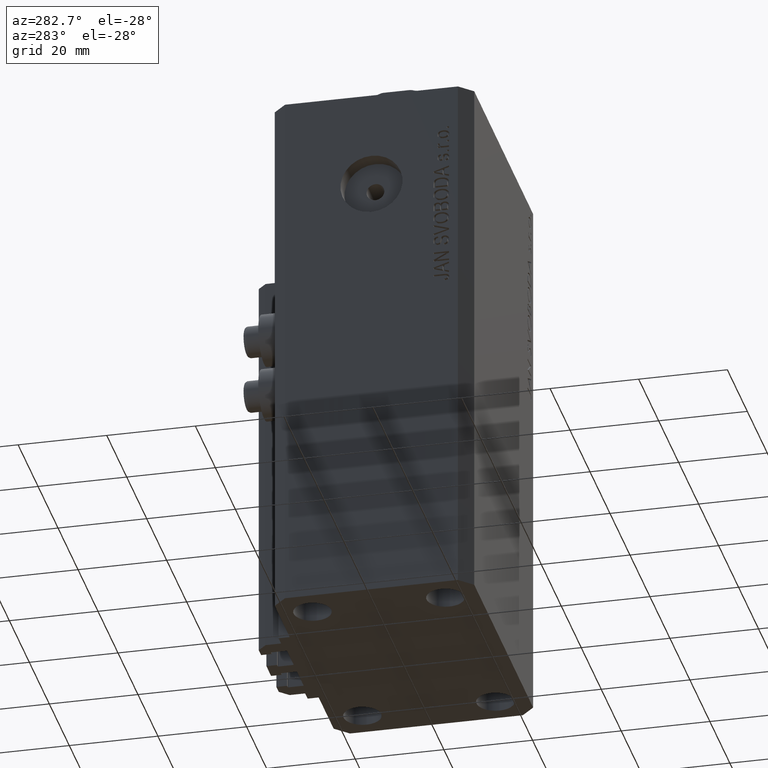
[diagram: clean part render]
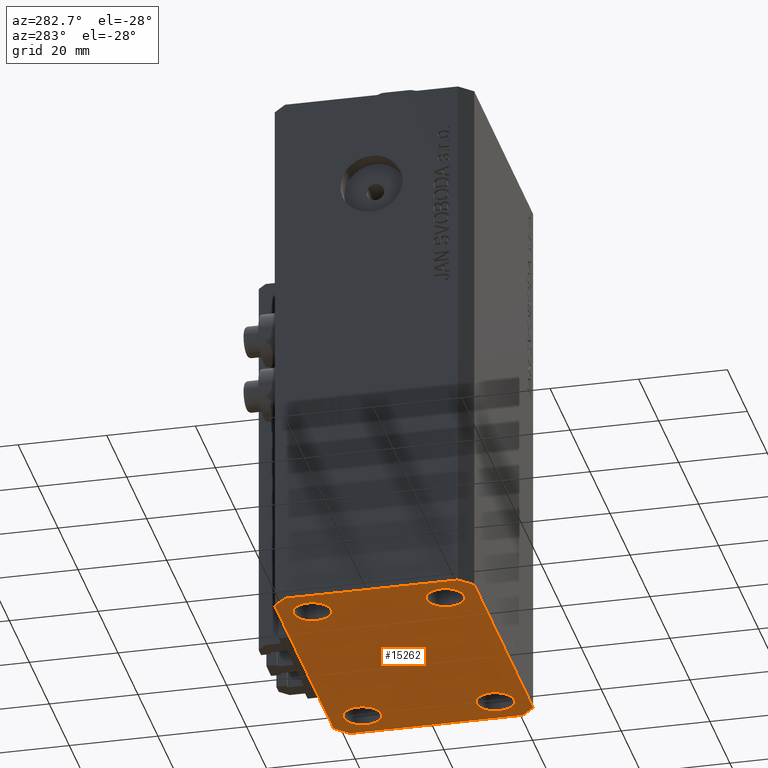
[diagram: same view with one face highlighted and labeled with its STEP entity id]
A machine part, auxiliary view. The second image highlights one B-rep face of the part: STEP entity #15262.
In plain terms, the highlighted planar face has unit normal (0, 0, 1).
Its self-contained STEP definition (entity closure, byte-faithful):
#276 = EDGE_CURVE ( 'NONE', #10479, #25262, #39083, .T. ) ;
#1261 = ORIENTED_EDGE ( 'NONE', *, *, #15469, .F. ) ;
#1328 = EDGE_CURVE ( 'NONE', #1799, #5796, #22737, .T. ) ;
#1390 = DIRECTION ( 'NONE',  ( 1.000000000000000000, 0.000000000000000000, 0.000000000000000000 ) ) ;
#1728 = CARTESIAN_POINT ( 'NONE',  ( -20.74999999995962341, -15.00000000000000355, -123.0000000000000000 ) ) ;
#1799 = VERTEX_POINT ( 'NONE', #30965 ) ;
#2054 = DIRECTION ( 'NONE',  ( -0.000000000000000000, -0.000000000000000000, -1.000000000000000000 ) ) ;
#2555 = VECTOR ( 'NONE', #13865, 1000.000000000000000 ) ;
#2754 = CARTESIAN_POINT ( 'NONE',  ( 24.99999999999999289, -15.00000000000000355, -123.0000000000000000 ) ) ;
#3280 = CIRCLE ( 'NONE', #36061, 4.250000000021375790 ) ;
#3481 = VERTEX_POINT ( 'NONE', #45412 ) ;
#4311 = VERTEX_POINT ( 'NONE', #11854 ) ;
#4625 = CIRCLE ( 'NONE', #22896, 4.249999999957291053 ) ;
#4817 = VERTEX_POINT ( 'NONE', #33076 ) ;
#5212 = CIRCLE ( 'NONE', #17402, 4.249999999957291053 ) ;
#5796 = VERTEX_POINT ( 'NONE', #30393 ) ;
#5856 = DIRECTION ( 'NONE',  ( -0.000000000000000000, -0.000000000000000000, -1.000000000000000000 ) ) ;
#5964 = VERTEX_POINT ( 'NONE', #22233 ) ;
#6380 = EDGE_CURVE ( 'NONE', #3481, #28477, #4625, .T. ) ;
#6664 = VERTEX_POINT ( 'NONE', #15767 ) ;
#6803 = DIRECTION ( 'NONE',  ( 1.000000000000000000, 0.000000000000000000, 0.000000000000000000 ) ) ;
#6902 = LINE ( 'NONE', #27092, #30966 ) ;
#6963 = ORIENTED_EDGE ( 'NONE', *, *, #36689, .F. ) ;
#7611 = CARTESIAN_POINT ( 'NONE',  ( -29.25000000002137668, 14.99999999999999645, -123.0000000000000000 ) ) ;
#7753 = AXIS2_PLACEMENT_3D ( 'NONE', #23310, #2054, #16636 ) ;
#7810 = ORIENTED_EDGE ( 'NONE', *, *, #19105, .F. ) ;
#8455 = ORIENTED_EDGE ( 'NONE', *, *, #42686, .F. ) ;
#8542 = VECTOR ( 'NONE', #39419, 1000.000000000000000 ) ;
#8782 = LINE ( 'NONE', #30721, #12590 ) ;
#8823 = DIRECTION ( 'NONE',  ( -0.000000000000000000, -0.000000000000000000, -1.000000000000000000 ) ) ;
#8963 = PLANE ( 'NONE',  #40067 ) ;
#9112 = VERTEX_POINT ( 'NONE', #43332 ) ;
#9285 = EDGE_CURVE ( 'NONE', #6664, #17420, #19427, .T. ) ;
#9885 = ORIENTED_EDGE ( 'NONE', *, *, #23353, .F. ) ;
#10153 = EDGE_CURVE ( 'NONE', #33307, #9112, #18411, .T. ) ;
#10385 = EDGE_LOOP ( 'NONE', ( #31900, #36027, #35797, #37000, #18580, #31201, #8455, #34055 ) ) ;
#10447 = CARTESIAN_POINT ( 'NONE',  ( -32.49999999999650413, -19.49999999999949907, -123.0000000000000000 ) ) ;
#10479 = VERTEX_POINT ( 'NONE', #22399 ) ;
#11313 = VECTOR ( 'NONE', #20714, 1000.000000000000114 ) ;
#11854 = CARTESIAN_POINT ( 'NONE',  ( 29.49999999999650413, -22.49999999999949196, -123.0000000000000000 ) ) ;
#12590 = VECTOR ( 'NONE', #12598, 1000.000000000000000 ) ;
#12598 = DIRECTION ( 'NONE',  ( 1.000000000000000000, 1.176083712526788232E-16, 0.000000000000000000 ) ) ;
#12651 = CIRCLE ( 'NONE', #30144, 4.250000000040370374 ) ;
#13018 = DIRECTION ( 'NONE',  ( 0.000000000000000000, 0.000000000000000000, 1.000000000000000000 ) ) ;
#13865 = DIRECTION ( 'NONE',  ( 0.000000000000000000, -1.000000000000000000, 0.000000000000000000 ) ) ;
#14035 = CARTESIAN_POINT ( 'NONE',  ( 29.49999999999707967, 22.49999999999952038, -123.0000000000000000 ) ) ;
#15262 = ADVANCED_FACE ( 'NONE', ( #33770, #20154, #30185, #41650, #31138 ), #8963, .F. ) ;
#15469 = EDGE_CURVE ( 'NONE', #43129, #24352, #12651, .T. ) ;
#15767 = CARTESIAN_POINT ( 'NONE',  ( -29.49999999999650413, 22.49999999999949907, -123.0000000000000000 ) ) ;
#15789 = AXIS2_PLACEMENT_3D ( 'NONE', #34105, #8823, #1390 ) ;
#16131 = DIRECTION ( 'NONE',  ( 0.7071067811865483499, 0.7071067811865466846, 0.000000000000000000 ) ) ;
#16230 = EDGE_CURVE ( 'NONE', #4311, #33307, #6902, .T. ) ;
#16636 = DIRECTION ( 'NONE',  ( 1.000000000000000000, 0.000000000000000000, 0.000000000000000000 ) ) ;
#16830 = DIRECTION ( 'NONE',  ( 1.000000000000000000, 0.000000000000000000, 0.000000000000000000 ) ) ;
#17342 = EDGE_CURVE ( 'NONE', #4817, #6664, #28803, .T. ) ;
#17402 = AXIS2_PLACEMENT_3D ( 'NONE', #37584, #5856, #16830 ) ;
#17420 = VERTEX_POINT ( 'NONE', #25460 ) ;
#17442 = AXIS2_PLACEMENT_3D ( 'NONE', #2754, #20899, #27831 ) ;
#18017 = VECTOR ( 'NONE', #21168, 1000.000000000000000 ) ;
#18115 = ORIENTED_EDGE ( 'NONE', *, *, #40646, .F. ) ;
#18411 = LINE ( 'NONE', #29162, #8542 ) ;
#18580 = ORIENTED_EDGE ( 'NONE', *, *, #47040, .F. ) ;
#18682 = CARTESIAN_POINT ( 'NONE',  ( -24.99999999999999289, -15.00000000000000355, -123.0000000000000000 ) ) ;
#18866 = DIRECTION ( 'NONE',  ( -0.000000000000000000, -0.000000000000000000, -1.000000000000000000 ) ) ;
#19105 = EDGE_CURVE ( 'NONE', #40070, #5964, #40945, .T. ) ;
#19427 = LINE ( 'NONE', #23489, #45840 ) ;
#20154 = FACE_BOUND ( 'NONE', #42410, .T. ) ;
#20714 = DIRECTION ( 'NONE',  ( 0.7071067811865474617, -0.7071067811865474617, 0.000000000000000000 ) ) ;
#20899 = DIRECTION ( 'NONE',  ( -0.000000000000000000, -0.000000000000000000, -1.000000000000000000 ) ) ;
#21168 = DIRECTION ( 'NONE',  ( -1.000000000000000000, -3.528251137580330676E-16, 0.000000000000000000 ) ) ;
#21233 = CARTESIAN_POINT ( 'NONE',  ( -32.49999999999650413, 19.49999999999949907, -123.0000000000000000 ) ) ;
#21781 = EDGE_CURVE ( 'NONE', #28477, #3481, #5212, .T. ) ;
#21897 = AXIS2_PLACEMENT_3D ( 'NONE', #25818, #22234, #43719 ) ;
#22233 = CARTESIAN_POINT ( 'NONE',  ( -20.74999999997862687, 14.99999999999999645, -123.0000000000000000 ) ) ;
#22234 = DIRECTION ( 'NONE',  ( -0.000000000000000000, -0.000000000000000000, -1.000000000000000000 ) ) ;
#22399 = CARTESIAN_POINT ( 'NONE',  ( -32.49999999999650413, -19.49999999999949907, -123.0000000000000000 ) ) ;
#22737 = CIRCLE ( 'NONE', #17442, 4.249999999976314058 ) ;
#22896 = AXIS2_PLACEMENT_3D ( 'NONE', #39492, #42144, #6803 ) ;
#23150 = DIRECTION ( 'NONE',  ( 1.000000000000000000, 0.000000000000000000, 0.000000000000000000 ) ) ;
#23244 = DIRECTION ( 'NONE',  ( -0.7071067811865474617, -0.7071067811865474617, 0.000000000000000000 ) ) ;
#23310 = CARTESIAN_POINT ( 'NONE',  ( -24.99999999999999289, -15.00000000000000355, -123.0000000000000000 ) ) ;
#23353 = EDGE_CURVE ( 'NONE', #5796, #1799, #36378, .T. ) ;
#23489 = CARTESIAN_POINT ( 'NONE',  ( -29.49999999999650413, 22.49999999999949907, -123.0000000000000000 ) ) ;
#24352 = VERTEX_POINT ( 'NONE', #1728 ) ;
#24407 = CARTESIAN_POINT ( 'NONE',  ( -29.49999999999650413, -22.49999999999949907, -123.0000000000000000 ) ) ;
#25262 = VERTEX_POINT ( 'NONE', #24407 ) ;
#25460 = CARTESIAN_POINT ( 'NONE',  ( -32.49999999999650413, 19.49999999999949907, -123.0000000000000000 ) ) ;
#25818 = CARTESIAN_POINT ( 'NONE',  ( 24.99999999999999289, -15.00000000000000355, -123.0000000000000000 ) ) ;
#27092 = CARTESIAN_POINT ( 'NONE',  ( 29.49999999999650413, -22.49999999999949196, -123.0000000000000000 ) ) ;
#27831 = DIRECTION ( 'NONE',  ( 1.000000000000000000, 0.000000000000000000, 0.000000000000000000 ) ) ;
#28147 = ORIENTED_EDGE ( 'NONE', *, *, #21781, .F. ) ;
#28177 = VECTOR ( 'NONE', #34366, 1000.000000000000000 ) ;
#28477 = VERTEX_POINT ( 'NONE', #39654 ) ;
#28803 = LINE ( 'NONE', #14035, #18017 ) ;
#29162 = CARTESIAN_POINT ( 'NONE',  ( 32.49999999999651124, -19.49999999999949196, -123.0000000000000000 ) ) ;
#29201 = DIRECTION ( 'NONE',  ( -0.000000000000000000, -0.000000000000000000, -1.000000000000000000 ) ) ;
#30144 = AXIS2_PLACEMENT_3D ( 'NONE', #18682, #29201, #43753 ) ;
#30185 = FACE_BOUND ( 'NONE', #38132, .T. ) ;
#30393 = CARTESIAN_POINT ( 'NONE',  ( 20.75000000002367884, -15.00000000000000355, -123.0000000000000000 ) ) ;
#30721 = CARTESIAN_POINT ( 'NONE',  ( -29.49999999999650413, -22.49999999999949907, -123.0000000000000000 ) ) ;
#30942 = EDGE_CURVE ( 'NONE', #9112, #4817, #31505, .T. ) ;
#30965 = CARTESIAN_POINT ( 'NONE',  ( 29.24999999997631051, -15.00000000000000355, -123.0000000000000000 ) ) ;
#30966 = VECTOR ( 'NONE', #16131, 1000.000000000000000 ) ;
#31138 = FACE_OUTER_BOUND ( 'NONE', #10385, .T. ) ;
#31201 = ORIENTED_EDGE ( 'NONE', *, *, #276, .F. ) ;
#31505 = LINE ( 'NONE', #42005, #28177 ) ;
#31900 = ORIENTED_EDGE ( 'NONE', *, *, #17342, .F. ) ;
#33076 = CARTESIAN_POINT ( 'NONE',  ( 29.49999999999707967, 22.49999999999952038, -123.0000000000000000 ) ) ;
#33307 = VERTEX_POINT ( 'NONE', #43725 ) ;
#33612 = EDGE_LOOP ( 'NONE', ( #6963, #1261 ) ) ;
#33770 = FACE_BOUND ( 'NONE', #33612, .T. ) ;
#34055 = ORIENTED_EDGE ( 'NONE', *, *, #9285, .F. ) ;
#34105 = CARTESIAN_POINT ( 'NONE',  ( -25.00000000000000000, 14.99999999999999645, -123.0000000000000000 ) ) ;
#34366 = DIRECTION ( 'NONE',  ( -0.7071067811865344721, 0.7071067811865606734, 0.000000000000000000 ) ) ;
#34715 = DIRECTION ( 'NONE',  ( 1.000000000000000000, 0.000000000000000000, -0.000000000000000000 ) ) ;
#35797 = ORIENTED_EDGE ( 'NONE', *, *, #10153, .F. ) ;
#36027 = ORIENTED_EDGE ( 'NONE', *, *, #30942, .F. ) ;
#36061 = AXIS2_PLACEMENT_3D ( 'NONE', #44413, #18866, #23150 ) ;
#36378 = CIRCLE ( 'NONE', #21897, 4.249999999976314058 ) ;
#36689 = EDGE_CURVE ( 'NONE', #24352, #43129, #41347, .T. ) ;
#37000 = ORIENTED_EDGE ( 'NONE', *, *, #16230, .F. ) ;
#37141 = ORIENTED_EDGE ( 'NONE', *, *, #6380, .F. ) ;
#37584 = CARTESIAN_POINT ( 'NONE',  ( 25.00000000000000000, 14.99999999999999289, -123.0000000000000000 ) ) ;
#38071 = CARTESIAN_POINT ( 'NONE',  ( -29.25000000004036593, -15.00000000000000355, -123.0000000000000000 ) ) ;
#38132 = EDGE_LOOP ( 'NONE', ( #37141, #28147 ) ) ;
#39083 = LINE ( 'NONE', #10447, #11313 ) ;
#39419 = DIRECTION ( 'NONE',  ( 1.334402673828349134E-14, 1.000000000000000000, 0.000000000000000000 ) ) ;
#39492 = CARTESIAN_POINT ( 'NONE',  ( 25.00000000000000000, 14.99999999999999289, -123.0000000000000000 ) ) ;
#39654 = CARTESIAN_POINT ( 'NONE',  ( 20.75000000004271072, 14.99999999999999289, -123.0000000000000000 ) ) ;
#40062 = EDGE_LOOP ( 'NONE', ( #18115, #7810 ) ) ;
#40067 = AXIS2_PLACEMENT_3D ( 'NONE', #45683, #13018, #34715 ) ;
#40070 = VERTEX_POINT ( 'NONE', #7611 ) ;
#40646 = EDGE_CURVE ( 'NONE', #5964, #40070, #3280, .T. ) ;
#40945 = CIRCLE ( 'NONE', #15789, 4.250000000021375790 ) ;
#41052 = ORIENTED_EDGE ( 'NONE', *, *, #1328, .F. ) ;
#41347 = CIRCLE ( 'NONE', #7753, 4.250000000040370374 ) ;
#41650 = FACE_BOUND ( 'NONE', #40062, .T. ) ;
#42005 = CARTESIAN_POINT ( 'NONE',  ( 32.49999999999702993, 19.49999999999945999, -123.0000000000000000 ) ) ;
#42144 = DIRECTION ( 'NONE',  ( -0.000000000000000000, -0.000000000000000000, -1.000000000000000000 ) ) ;
#42410 = EDGE_LOOP ( 'NONE', ( #41052, #9885 ) ) ;
#42686 = EDGE_CURVE ( 'NONE', #17420, #10479, #46295, .T. ) ;
#43129 = VERTEX_POINT ( 'NONE', #38071 ) ;
#43332 = CARTESIAN_POINT ( 'NONE',  ( 32.49999999999702993, 19.49999999999945999, -123.0000000000000000 ) ) ;
#43719 = DIRECTION ( 'NONE',  ( 1.000000000000000000, 0.000000000000000000, 0.000000000000000000 ) ) ;
#43725 = CARTESIAN_POINT ( 'NONE',  ( 32.49999999999651124, -19.49999999999949196, -123.0000000000000000 ) ) ;
#43753 = DIRECTION ( 'NONE',  ( 1.000000000000000000, 0.000000000000000000, 0.000000000000000000 ) ) ;
#44413 = CARTESIAN_POINT ( 'NONE',  ( -25.00000000000000000, 14.99999999999999645, -123.0000000000000000 ) ) ;
#45412 = CARTESIAN_POINT ( 'NONE',  ( 29.24999999995729283, 14.99999999999999289, -123.0000000000000000 ) ) ;
#45683 = CARTESIAN_POINT ( 'NONE',  ( 0.000000000000000000, 0.000000000000000000, -123.0000000000000000 ) ) ;
#45840 = VECTOR ( 'NONE', #23244, 1000.000000000000114 ) ;
#46295 = LINE ( 'NONE', #21233, #2555 ) ;
#47040 = EDGE_CURVE ( 'NONE', #25262, #4311, #8782, .T. ) ;